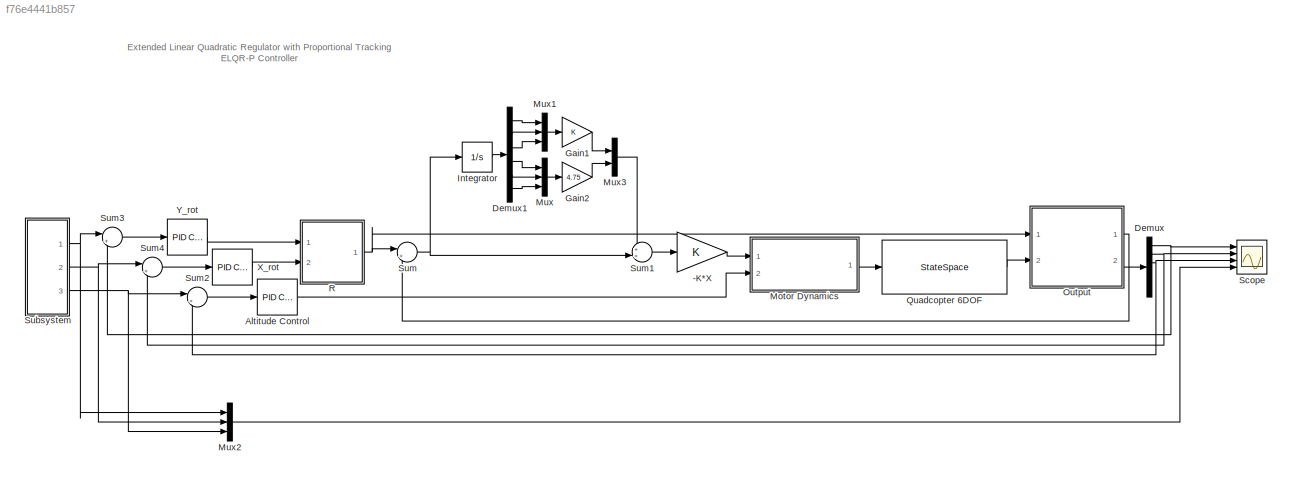
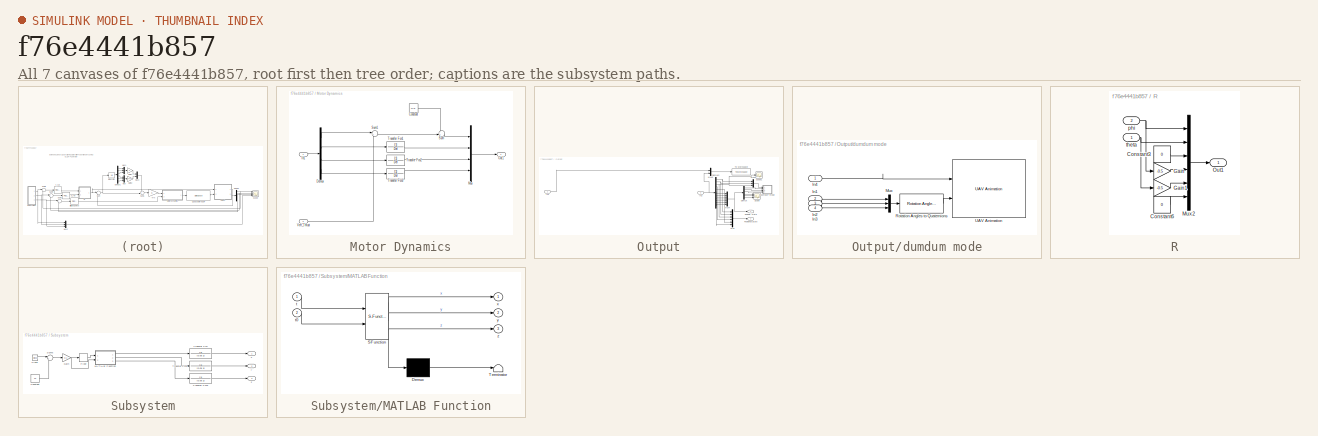
[diagram: thumbnail index - all 7 canvases of the model, root first then tree order]
MODEL slx_f76e4441b857
KIND model
CONFIG AbsTol = auto
CONFIG EnableMultiTasking = off
CONFIG FixedStep = auto
CONFIG MaxStep = 0.01
CONFIG MinStep = auto
CONFIG RelTol = 1e-3
CONFIG SampleTimeConstraint = Unconstrained
CONFIG SolverName = VariableStepAuto
CONFIG StartTime = 0.0
CONFIG StopTime = 70
BLOCK [Gain] -K*X
  Gain = K
  Multiplication = Matrix(K*u) (u vector)
BLOCK [Reference] Altitude Control  REF=pid_lib/PID Controller
  Ports = [1, 1]
  SourceBlock = pid_lib/PID Controller
  SourceProductBaseCode = SL
  SourceType = PID 1dof
BLOCK [Demux] Demux
  Outputs = 6
  Ports = [1, 6]
BLOCK [Demux] Demux1
  Outputs = 6
  Ports = [1, 6]
BLOCK [Gain] Gain1
BLOCK [Gain] Gain2
  Gain = 4.75
BLOCK [Integrator] Integrator
  Ports = [1, 1]
BLOCK [SubSystem] Motor Dynamics
  Ports = [2, 1]
  RequestExecContextInheritance = off
BLOCK [Constant] Motor Dynamics/Constant
  Value = m*g
BLOCK [Demux] Motor Dynamics/Demux
  Ports = [1, 4]
BLOCK [Inport] Motor Dynamics/In1
BLOCK [Mux] Motor Dynamics/Mux
  DisplayOption = bar
  Ports = [4, 1]
BLOCK [Outport] Motor Dynamics/Out1
BLOCK [Sum] Motor Dynamics/Sum
  Inputs = -+|
  Ports = [2, 1]
BLOCK [Sum] Motor Dynamics/Sum1
  Inputs = |++
  Ports = [2, 1]
BLOCK [TransferFcn] Motor Dynamics/Transfer Fcn1
  Denominator = Del
BLOCK [TransferFcn] Motor Dynamics/Transfer Fcn2
  Denominator = Del
BLOCK [TransferFcn] Motor Dynamics/Transfer Fcn3
  Denominator = Del
BLOCK [Inport] Motor Dynamics/Vert_Thrust
  Port = 2
BLOCK [Mux] Mux
  DisplayOption = bar
  Inputs = 3
  Ports = [3, 1]
BLOCK [Mux] Mux1
  DisplayOption = bar
  Inputs = 3
  Ports = [3, 1]
BLOCK [Mux] Mux2
  DisplayOption = bar
  Inputs = 3
  Ports = [3, 1]
BLOCK [Mux] Mux3
  DisplayOption = bar
  Inputs = 2
  Ports = [2, 1]
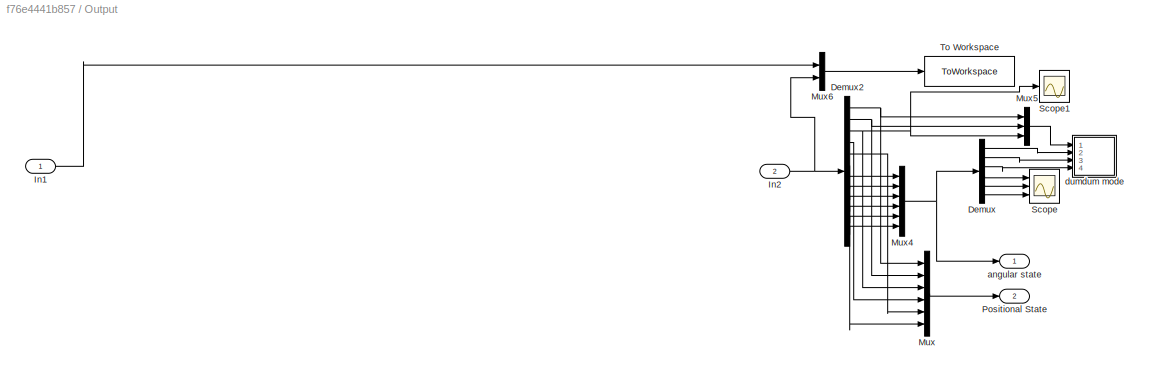
BLOCK [SubSystem] Output
  Ports = [2, 2]
  RequestExecContextInheritance = off
BLOCK [Demux] Output/Demux
  Outputs = 6
  Ports = [1, 6]
BLOCK [Demux] Output/Demux2
  Outputs = 12
  Ports = [1, 12]
BLOCK [Inport] Output/In1
BLOCK [Inport] Output/In2
  Port = 2
BLOCK [Mux] Output/Mux
  DisplayOption = bar
  Inputs = 6
  Ports = [6, 1]
BLOCK [Mux] Output/Mux4
  DisplayOption = bar
  Inputs = 6
  Ports = [6, 1]
BLOCK [Mux] Output/Mux5
  DisplayOption = bar
  Inputs = 3
  Ports = [3, 1]
BLOCK [Mux] Output/Mux6
  DisplayOption = bar
  Inputs = 2
  Ports = [2, 1]
BLOCK [Outport] Output/Positional State
  Port = 2
BLOCK [Scope] Output/Scope
  Floating = off
  NumInputPorts = 3
  Ports = [3]
  ScopeSpecificationString = Simulink.scopes.TimeScopeBlockCfg('CurrentConfiguration', extmgr.ConfigurationSet(extmgr.Configuration('Core','General UI',true),extmgr.Configuration('Core','Source UI',true),extmgr.Configuration('Sources','WiredSimulink',true),extmgr.Configuration('Visuals','Time Domain',true,'SerializedDisplays',{struct('MinYLimReal','-24.61076','MaxYLimReal','24.61358','YLabelReal','','MinYLimMag','0.00000','Ma...<+1403ch>
BLOCK [Scope] Output/Scope1
  Floating = off
  NumInputPorts = 1
  Ports = [1]
  ScopeSpecificationString = Simulink.scopes.TimeScopeBlockCfg('CurrentConfiguration', extmgr.ConfigurationSet(extmgr.Configuration('Core','General UI',true),extmgr.Configuration('Core','Source UI',true),extmgr.Configuration('Sources','WiredSimulink',true,'DataLoggingVariableName','ScopeData1'),extmgr.Configuration('Visuals','Time Domain',true,'SerializedDisplays',{struct('MinYLimReal','-0.12541','MaxYLimReal','1.1287','YLabe...<+1415ch>
BLOCK [ToWorkspace] Output/To Workspace
  FixptAsFi = on
  MaxDataPoints = inf
  Ports = [1]
  SampleTime = -1
  SaveFormat = Timeseries
  VariableName = simout
BLOCK [Outport] Output/angular state
BLOCK [SubSystem] Output/dumdum mode
  Ports = [4]
  RequestExecContextInheritance = off
BLOCK [Inport] Output/dumdum mode/In1
  Port = 2
BLOCK [Inport] Output/dumdum mode/In2
  Port = 3
BLOCK [Inport] Output/dumdum mode/In3
  Port = 4
BLOCK [Inport] Output/dumdum mode/In4
BLOCK [Mux] Output/dumdum mode/Mux
  DisplayOption = bar
  Inputs = 3
  Ports = [3, 1]
BLOCK [Reference] Output/dumdum mode/Rotation Angles to Quaternions  REF=sharedtransform/Rotation Angles to Quaternions
  AttributesFormatString = Rotation Order: %<rotationOrder>
  Ports = [1, 1]
  SourceBlock = sharedtransform/Rotation Angles to Quaternions
  SourceProductBaseCode = AE,PW,MT,UV,VE,VP
  SourceType = Ang2Quat
BLOCK [Reference] Output/dumdum mode/UAV Animation  REF=uavutilslib/UAV Animation
  Ports = [2]
  SourceBlock = uavutilslib/UAV Animation
  SourceProductBaseCode = UV
  SourceType = uav.sluav.internal.system.UAVAnimation
BLOCK [StateSpace] Quadcopter 6DOF
  A = A_real
  B = B_real
  C = C_real
  D = D_real
  InitialCondition = [0 0 0 0 0 0 0 0 0 0 0 0]
  Ports = [1, 1]
BLOCK [SubSystem] R
  Ports = [2, 1]
  RequestExecContextInheritance = off
BLOCK [Constant] R/Constant3
  Value = 0
BLOCK [Constant] R/Constant6
  Value = 0
BLOCK [Gain] R/Gain
  Gain = -0.5
BLOCK [Gain] R/Gain1
  Gain = -0.5
BLOCK [Mux] R/Mux2
  DisplayOption = bar
  Inputs = 6
  Ports = [6, 1]
BLOCK [Outport] R/Out1
BLOCK [Inport] R/phi
  Port = 2
BLOCK [Inport] R/theta
BLOCK [Scope] Scope
  Floating = off
  NumInputPorts = 4
  Ports = [4]
  ScopeSpecificationString = Simulink.scopes.TimeScopeBlockCfg('CurrentConfiguration', extmgr.ConfigurationSet(extmgr.Configuration('Core','General UI',true),extmgr.Configuration('Core','Source UI',true),extmgr.Configuration('Sources','WiredSimulink',true,'DataLoggingVariableName','ScopeData1'),extmgr.Configuration('Visuals','Time Domain',true,'SerializedDisplays',{struct('MinYLimReal','-5.81348','MaxYLimReal','9.05757','YLab...<+1499ch>
BLOCK [SubSystem] Subsystem
  Ports = [0, 3]
  RequestExecContextInheritance = off
BLOCK [Clock] Subsystem/Clock
BLOCK [Constant] Subsystem/Constant
  Value = 10
BLOCK [Rounding] Subsystem/Floor
BLOCK [Gain] Subsystem/Gain
  Gain = 0.1
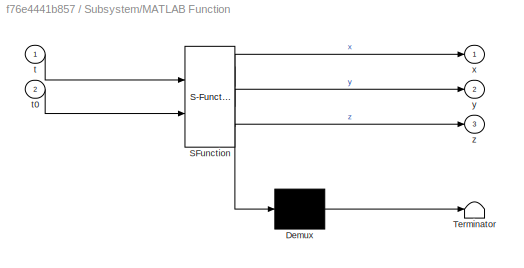
BLOCK [SubSystem] Subsystem/MATLAB Function
  ErrorFcn = Stateflow.Translate.translate
  PermitHierarchicalResolution = ExplicitOnly
  Ports = [2, 3]
  RequestExecContextInheritance = off
  SFBlockType = MATLAB Function
  TreatAsAtomicUnit = on
BLOCK [Demux] Subsystem/MATLAB Function/ Demux 
  Outputs = 1
  Ports = [1, 1]
BLOCK [S-Function] Subsystem/MATLAB Function/ SFunction 
  EnableBusSupport = on
  FunctionName = sf_sfun
  PortCounts = [2 4]
  Ports = [2, 4]
  SFcnIsStateOwnerBlock = off
  SFunctionDeploymentMode = off
  Tag = Stateflow S-Function 2
BLOCK [Terminator] Subsystem/MATLAB Function/ Terminator 
BLOCK [Inport] Subsystem/MATLAB Function/t
BLOCK [Inport] Subsystem/MATLAB Function/t0
  Port = 2
BLOCK [Outport] Subsystem/MATLAB Function/x
BLOCK [Outport] Subsystem/MATLAB Function/y
  Port = 2
BLOCK [Outport] Subsystem/MATLAB Function/z
  Port = 3
BLOCK [Sum] Subsystem/Sum5
  Inputs = |++
  Ports = [2, 1]
BLOCK [TransferFcn] Subsystem/Transfer Fcn
  Denominator = [0.05 1]
BLOCK [TransferFcn] Subsystem/Transfer Fcn1
  Denominator = [0.05 1]
BLOCK [TransferFcn] Subsystem/Transfer Fcn2
  Denominator = [0.05 1]
BLOCK [Outport] Subsystem/x
BLOCK [Outport] Subsystem/y
  Port = 2
BLOCK [Outport] Subsystem/z
  Port = 3
BLOCK [Sum] Sum
  Inputs = |+-
  Ports = [2, 1]
BLOCK [Sum] Sum1
  Inputs = ++|
  Ports = [2, 1]
BLOCK [Sum] Sum2
  Inputs = |+-
  Ports = [2, 1]
BLOCK [Sum] Sum3
  Inputs = |+-
  Ports = [2, 1]
BLOCK [Sum] Sum4
  Inputs = |+-
  Ports = [2, 1]
BLOCK [Reference] X_rot  REF=pid_lib/PID Controller
  Ports = [1, 1]
  SourceBlock = pid_lib/PID Controller
  SourceProductBaseCode = SL
  SourceType = PID 1dof
BLOCK [Reference] Y_rot  REF=pid_lib/PID Controller
  Ports = [1, 1]
  SourceBlock = pid_lib/PID Controller
  SourceProductBaseCode = SL
  SourceType = PID 1dof
ANNOTATION (root): Extended Linear Quadratic Regulator with Proportional Tracking ELQR-P Controller
LINE -K*X:1 -> Motor Dynamics:1
LINE Altitude Control:1 -> Motor Dynamics:2
LINE Demux1:1 -> Mux1:1
LINE Demux1:2 -> Mux1:2
LINE Demux1:3 -> Mux1:3
LINE Demux1:4 -> Mux:1
LINE Demux1:5 -> Mux:2
LINE Demux1:6 -> Mux:3
NET Demux:1 -> Scope:1, Sum3:2
NET Demux:2 -> Scope:2, Sum4:2
NET Demux:3 -> Scope:3, Sum2:2
LINE Gain1:1 -> Mux3:1
LINE Gain2:1 -> Mux3:2
LINE Integrator:1 -> Demux1:1
LINE Motor Dynamics/Constant:1 -> Motor Dynamics/Sum:1
LINE Motor Dynamics/Demux:1 -> Motor Dynamics/Sum1:1
LINE Motor Dynamics/Demux:2 -> Motor Dynamics/Transfer Fcn1:1
LINE Motor Dynamics/Demux:3 -> Motor Dynamics/Transfer Fcn2:1
LINE Motor Dynamics/Demux:4 -> Motor Dynamics/Transfer Fcn3:1
LINE Motor Dynamics/In1:1 -> Motor Dynamics/Demux:1
LINE Motor Dynamics/Mux:1 -> Motor Dynamics/Out1:1
LINE Motor Dynamics/Sum1:1 -> Motor Dynamics/Sum:2
LINE Motor Dynamics/Sum:1 -> Motor Dynamics/Mux:1
LINE Motor Dynamics/Transfer Fcn1:1 -> Motor Dynamics/Mux:2
LINE Motor Dynamics/Transfer Fcn2:1 -> Motor Dynamics/Mux:3
LINE Motor Dynamics/Transfer Fcn3:1 -> Motor Dynamics/Mux:4
LINE Motor Dynamics/Vert_Thrust:1 -> Motor Dynamics/Sum1:2
LINE Motor Dynamics:1 -> Quadcopter 6DOF:1
LINE Mux1:1 -> Gain1:1
LINE Mux2:1 -> Scope:4
LINE Mux3:1 -> Sum1:1
LINE Mux:1 -> Gain2:1
NET Output/Demux2:1 -> Output/Mux5:1, Output/Mux:1
LINE Output/Demux2:10 -> Output/Mux4:4
LINE Output/Demux2:11 -> Output/Mux4:5
LINE Output/Demux2:12 -> Output/Mux4:6
NET Output/Demux2:2 -> Output/Mux5:2, Output/Mux:2
NET Output/Demux2:3 -> Output/Mux5:3, Output/Mux:3, Output/Scope1:1
LINE Output/Demux2:4 -> Output/Mux:4
LINE Output/Demux2:5 -> Output/Mux:5
LINE Output/Demux2:6 -> Output/Mux:6
LINE Output/Demux2:7 -> Output/Mux4:1
LINE Output/Demux2:8 -> Output/Mux4:2
LINE Output/Demux2:9 -> Output/Mux4:3
LINE Output/Demux:1 -> Output/dumdum mode:2
LINE Output/Demux:2 -> Output/dumdum mode:3
LINE Output/Demux:3 -> Output/dumdum mode:4
LINE Output/Demux:4 -> Output/Scope:1
LINE Output/Demux:5 -> Output/Scope:2
LINE Output/Demux:6 -> Output/Scope:3
LINE Output/In1:1 -> Output/Mux6:1
NET Output/In2:1 -> Output/Demux2:1, Output/Mux6:2
NET Output/Mux4:1 -> Output/Demux:1, Output/angular state:1
LINE Output/Mux5:1 -> Output/dumdum mode:1
LINE Output/Mux6:1 -> Output/To Workspace:1
LINE Output/Mux:1 -> Output/Positional State:1
LINE Output/dumdum mode/In1:1 -> Output/dumdum mode/Mux:3
LINE Output/dumdum mode/In2:1 -> Output/dumdum mode/Mux:2
LINE Output/dumdum mode/In3:1 -> Output/dumdum mode/Mux:1
LINE Output/dumdum mode/In4:1 -> Output/dumdum mode/UAV Animation:1
LINE Output/dumdum mode/Mux:1 -> Output/dumdum mode/Rotation Angles to Quaternions:1
LINE Output/dumdum mode/Rotation Angles to Quaternions:1 -> Output/dumdum mode/UAV Animation:2
LINE Output:1 -> Sum:2
LINE Output:2 -> Demux:1
LINE Quadcopter 6DOF:1 -> Output:2
LINE R/Constant3:1 -> R/Mux2:3
LINE R/Constant6:1 -> R/Mux2:6
LINE R/Gain1:1 -> R/Mux2:5
LINE R/Gain:1 -> R/Mux2:4
LINE R/Mux2:1 -> R/Out1:1
NET R/phi:1 -> R/Gain:1, R/Mux2:1
NET R/theta:1 -> R/Gain1:1, R/Mux2:2
NET R:1 -> Output:1, Sum:1
LINE Subsystem/Clock:1 -> Subsystem/Sum5:1
LINE Subsystem/Constant:1 -> Subsystem/Sum5:2
LINE Subsystem/Floor:1 -> Subsystem/MATLAB Function:1
NET Subsystem/Gain:1 -> Subsystem/Floor:1, Subsystem/MATLAB Function:2
LINE Subsystem/MATLAB Function:1 -> Subsystem/Transfer Fcn:1
LINE Subsystem/MATLAB Function:2 -> Subsystem/Transfer Fcn1:1
LINE Subsystem/MATLAB Function:3 -> Subsystem/Transfer Fcn2:1
LINE Subsystem/Sum5:1 -> Subsystem/Gain:1
LINE Subsystem/Transfer Fcn1:1 -> Subsystem/y:1
LINE Subsystem/Transfer Fcn2:1 -> Subsystem/z:1
LINE Subsystem/Transfer Fcn:1 -> Subsystem/x:1
NET Subsystem:1 -> Mux2:1, Sum3:1
NET Subsystem:2 -> Mux2:2, Sum4:1
NET Subsystem:3 -> Mux2:3, Sum2:1
LINE Sum1:1 -> -K*X:1
LINE Sum2:1 -> Altitude Control:1
LINE Sum3:1 -> Y_rot:1
LINE Sum4:1 -> X_rot:1
NET Sum:1 -> Integrator:1, Sum1:2
LINE X_rot:1 -> R:2
LINE Y_rot:1 -> R:1
note: NET lines group one-source signal fan-out (src -> all destinations, sorted); 1:1 wires keep LINE
CHART Subsystem/MATLAB Function states=1 transitions=1
  STATE_LABEL 'eML_blk_kernel()'
  STATE_LABEL 'SCRIPT:\nfunction [x, y, z] = fcn(t,t0)\n\nwaypoints = [0 0 1\n             7 0 5\n             7 2 5\n             2 -3 5\n             -4 3 5\n             5 7 5\n             -3 -2 0\n             -3 -2 0\n             -3 -2 0\n             ];\n         \nst = t;\n\n\nx = waypoints(st,1,:)+(t0-t)*(waypoints(st+1,1,:) - waypoints(st,1,:));\ny = waypoints(st,2,:)+(t0-t)*(waypoints(st+1,2,:) - waypoints(st,2,:));\nz...<+73ch>'
CHART  states=0 transitions=0
